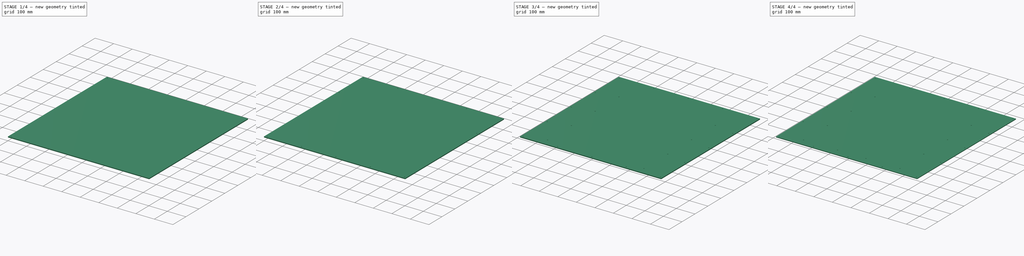
[diagram: build sequence overview — one tinted view per stage of 4, left to right]
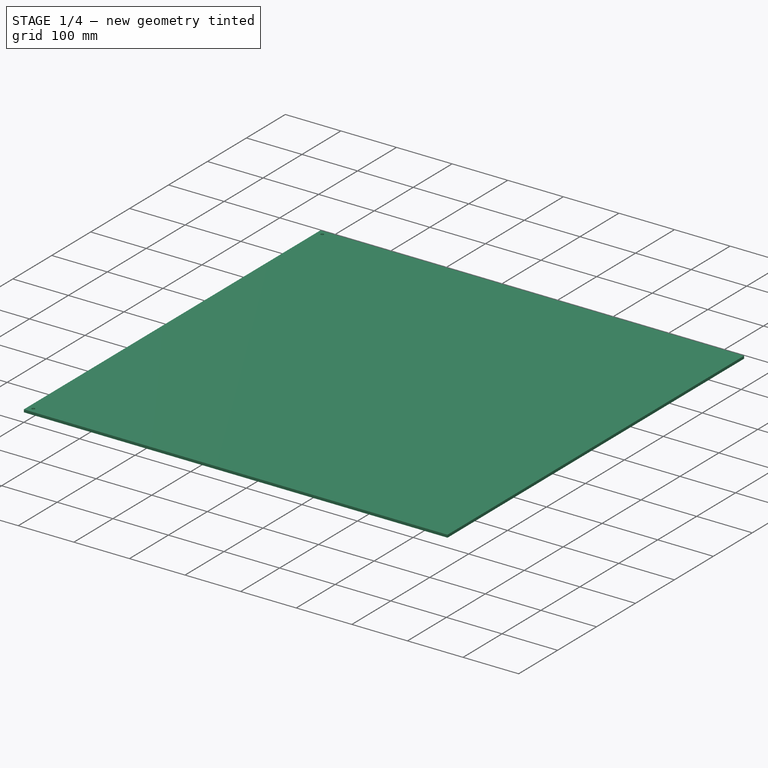
[diagram: stage 1 of 4 — iso view after this stage's code; geometry added in this stage tinted green]
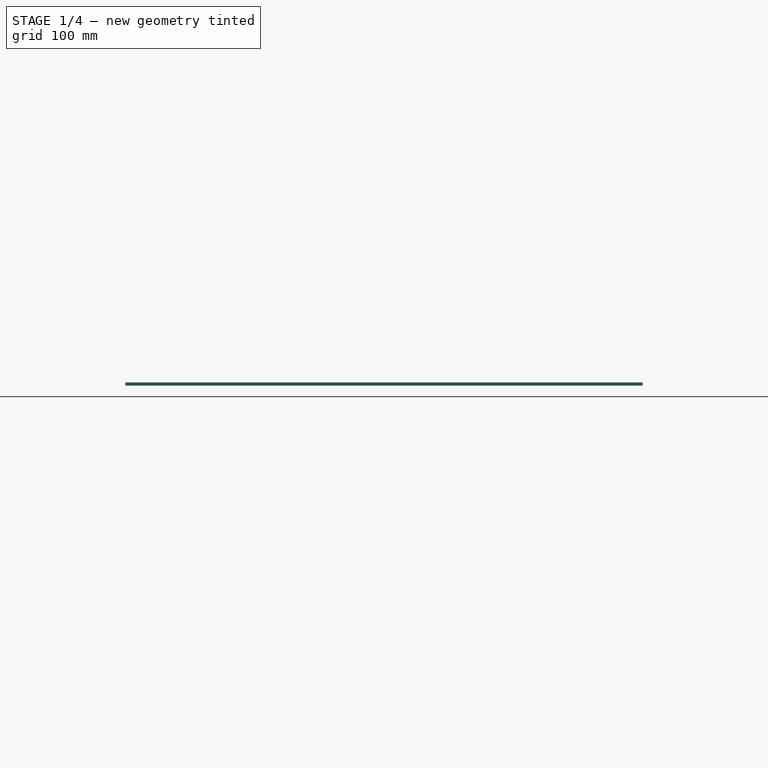
[diagram: stage 1 of 4 — front view after this stage's code; geometry added in this stage tinted green]
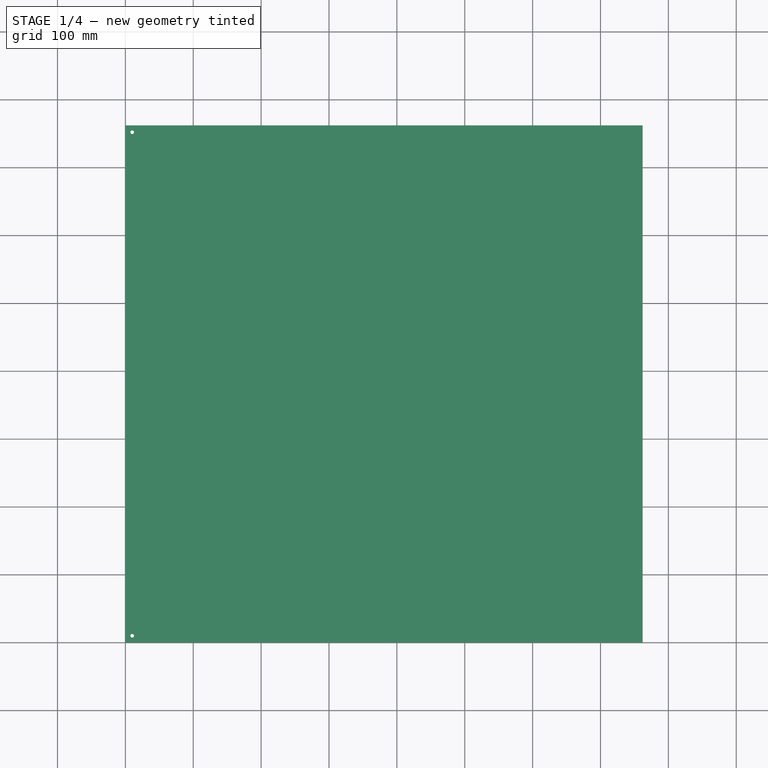
[diagram: stage 1 of 4 — top view after this stage's code; geometry added in this stage tinted green]
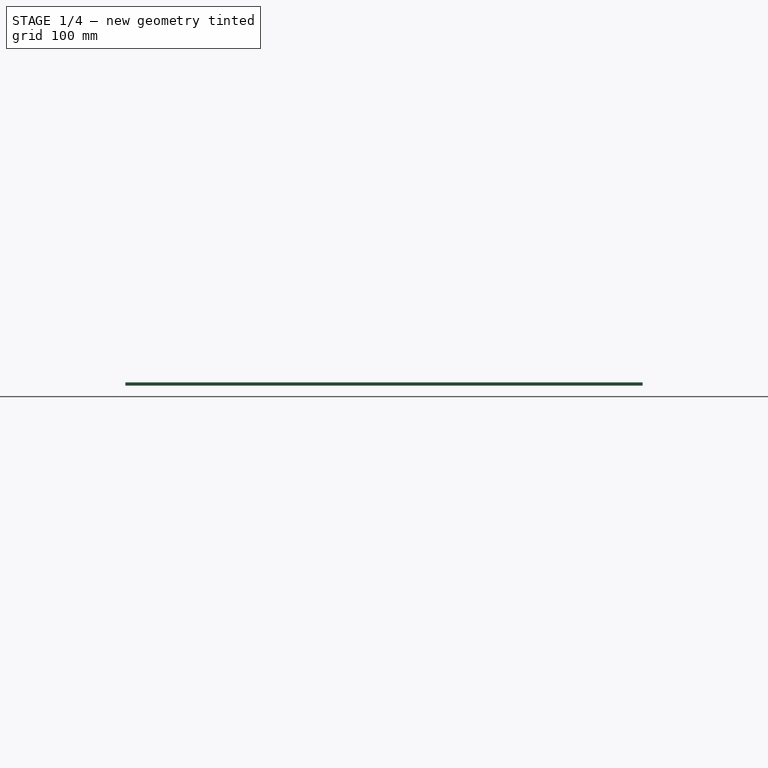
[diagram: stage 1 of 4 — right view after this stage's code; geometry added in this stage tinted green]
FCSTD DOCUMENT  (FreeCAD 0.17R7872 (Git))
Label: TAZ6_frame_assy_fixture_base_plate
License: CreativeCommons Attribution-ShareAlike
LicenseURL: http://creativecommons.org/licenses/by-sa/4.0/
objects: Sketcher::SketchObject×5, PartDesign::Pocket×4, PartDesign::LinearPattern×3, PartDesign::Pad×1, PartDesign::Fillet×1, PartDesign::Body×1, Part::Feature×1
note: 21 computed .brp shape members not serialized (recipe doc carries the construction recipe); baked Part::Feature solids carry a one-line shape summary decoded from their .brp

FEATURE [Sketcher::SketchObject] Sketch
  MapMode = 5
  Support = -> [XY_Plane]
  sketch-geometry (4):
    g0: LineSegment StartX=0 StartY=762 StartZ=0 EndX=762 EndY=762 EndZ=0
    g1: LineSegment StartX=762 StartY=762 StartZ=0 EndX=762 EndY=0 EndZ=0
    g2: LineSegment StartX=762 StartY=0 StartZ=0 EndX=0 EndY=0 EndZ=0
    g3: LineSegment StartX=0 StartY=0 StartZ=0 EndX=0 EndY=762 EndZ=0
  constraints (11):
    c: Coincident(g0,g1)
    c: Coincident(g1,g2)
    c: Coincident(g2,g3)
    c: Coincident(g3,g0)
    c: Horizontal(g0)
    c: Horizontal(g2)
    c: Vertical(g1)
    c: Vertical(g3)
    c: Coincident(g2,g-1)
    c: DistanceY(g3,g3) = 762
    c: DistanceX(g2,g2) = 762
FEATURE [PartDesign::Pad] Pad
  Length = 4.826
  Length2 = 100
  Placement = pos=(-272.447,383.343,-14.826) rot=(0,0,1;0rad)
  Profile = -> Sketch
  Type = 0
FEATURE [Sketcher::SketchObject] Sketch001
  ExternalGeometry = -> [Pad]
  MapMode = 5
  Placement = pos=(0,0,4.826) rot=(0,0,1;0rad)
  Support = -> [Pad]
  sketch-geometry (6):
    g0: LineSegment [constr] StartX=752 StartY=752 StartZ=0 EndX=10 EndY=752 EndZ=0
    g1: LineSegment [constr] StartX=10 StartY=752 StartZ=0 EndX=10 EndY=10 EndZ=0
    g2: LineSegment [constr] StartX=10 StartY=10 StartZ=0 EndX=752 EndY=10 EndZ=0
    g3: LineSegment [constr] StartX=752 StartY=10 StartZ=0 EndX=752 EndY=752 EndZ=0
    g4: Circle CenterX=10 CenterY=752 CenterZ=0 NormalX=0 NormalY=0 NormalZ=1 Radius=2.7
    g5: Circle CenterX=10 CenterY=10 CenterZ=0 NormalX=0 NormalY=0 NormalZ=1 Radius=2.7
  constraints (16):
    c: Coincident(g0,g1)
    c: Coincident(g1,g2)
    c: Coincident(g2,g3)
    c: Coincident(g3,g0)
    c: Horizontal(g0)
    c: Horizontal(g2)
    c: Vertical(g1)
    c: Vertical(g3)
    c: DistanceX(g0,g0) = 742
    c: DistanceY(g1,g1) = 742
    c: DistanceX(g0,g-4) = 10
    c: DistanceY(g0,g-4) = 10
    c: Coincident(g4,g0)
    c: Coincident(g5,g1)
    c: Radius(g5) = 2.7
    c: Equal(g5,g4)
FEATURE [PartDesign::Pocket] Pocket
  BaseFeature = -> Pad
  Length = 5
  Profile = -> Sketch001
  Type = 0
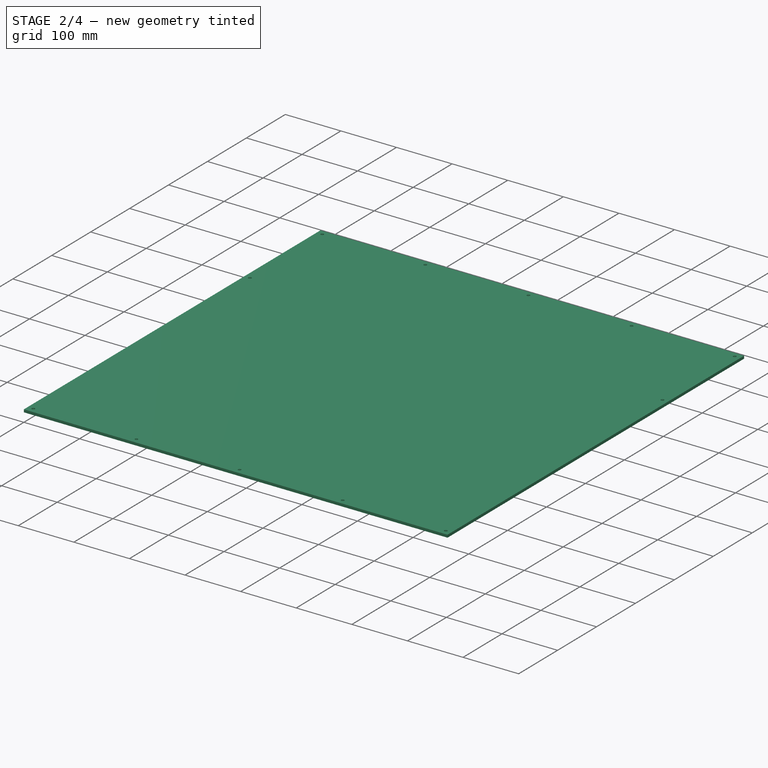
[diagram: stage 2 of 4 — iso view after this stage's code; geometry added in this stage tinted green]
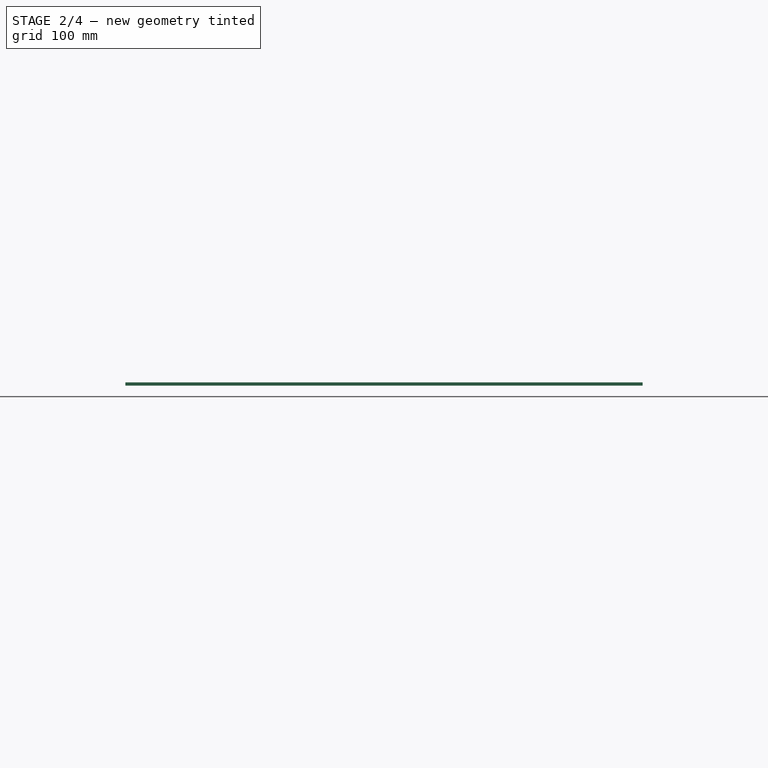
[diagram: stage 2 of 4 — front view after this stage's code; geometry added in this stage tinted green]
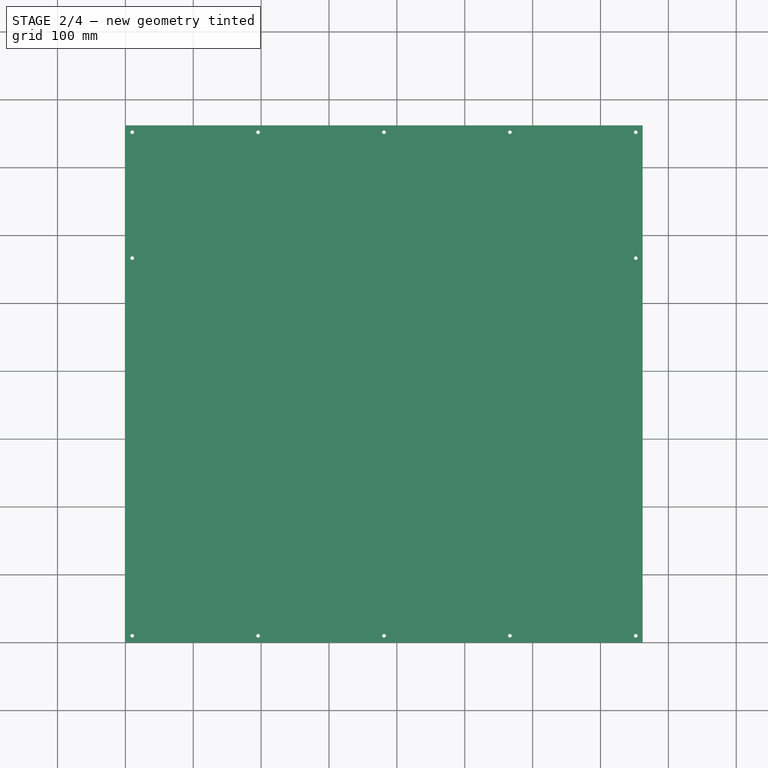
[diagram: stage 2 of 4 — top view after this stage's code; geometry added in this stage tinted green]
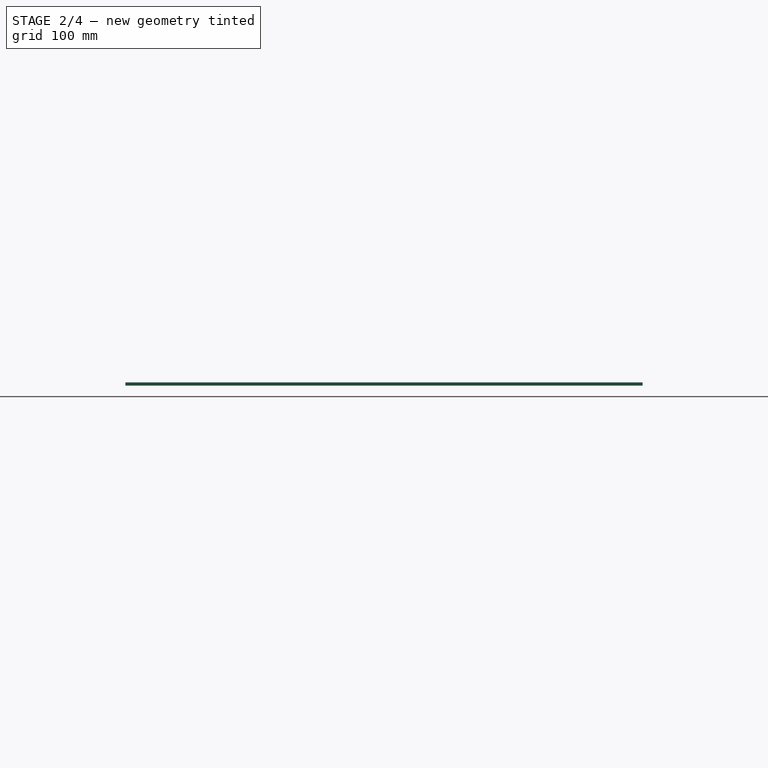
[diagram: stage 2 of 4 — right view after this stage's code; geometry added in this stage tinted green]
FEATURE [PartDesign::LinearPattern] LinearPattern
  BaseFeature = -> Pocket
  Direction = -> Sketch001 [H_Axis]
  Length = 742
  Occurrences = 5
  Originals = -> [Pocket]
FEATURE [Sketcher::SketchObject] Sketch002
  ExternalGeometry = -> [LinearPattern]
  MapMode = 5
  Placement = pos=(0,0,4.826) rot=(0,0,1;0rad)
  Support = -> [LinearPattern]
  sketch-geometry (10):
    g0: LineSegment [constr] StartX=10 StartY=752 StartZ=0 EndX=195.5 EndY=752 EndZ=0
    g1: LineSegment [constr] StartX=195.5 StartY=752 StartZ=0 EndX=195.5 EndY=566.5 EndZ=0
    g2: LineSegment [constr] StartX=195.5 StartY=566.5 StartZ=0 EndX=10 EndY=566.5 EndZ=0
    g3: LineSegment [constr] StartX=10 StartY=566.5 StartZ=0 EndX=10 EndY=752 EndZ=0
    g4: Circle CenterX=10 CenterY=566.5 CenterZ=0 NormalX=0 NormalY=0 NormalZ=1 Radius=2.7
    g5: LineSegment [constr] StartX=752 StartY=752 StartZ=0 EndX=566.5 EndY=752 EndZ=0
    g6: LineSegment [constr] StartX=566.5 StartY=752 StartZ=0 EndX=566.5 EndY=566.5 EndZ=0
    g7: LineSegment [constr] StartX=566.5 StartY=566.5 StartZ=0 EndX=752 EndY=566.5 EndZ=0
    g8: LineSegment [constr] StartX=752 StartY=566.5 StartZ=0 EndX=752 EndY=752 EndZ=0
    g9: Circle CenterX=752 CenterY=566.5 CenterZ=0 NormalX=0 NormalY=0 NormalZ=1 Radius=2.7
  constraints (26):
    c: Coincident(g0,g1)
    c: Coincident(g1,g2)
    c: Coincident(g2,g3)
    c: Coincident(g3,g0)
    c: Horizontal(g0)
    c: Horizontal(g2)
    c: Vertical(g1)
    c: Vertical(g3)
    c: Coincident(g0,g-3)
    c: Coincident(g0,g-4)
    c: Equal(g1,g0)
    c: Coincident(g4,g2)
    c: Coincident(g5,g6)
    c: Coincident(g6,g7)
    c: Coincident(g7,g8)
    c: Coincident(g8,g5)
    c: Horizontal(g5)
    c: Horizontal(g7)
    c: Vertical(g6)
    c: Vertical(g8)
    c: Coincident(g5,g-5)
    c: Coincident(g-6,g5)
    c: Equal(g5,g8)
    c: Coincident(g7,g9)
    c: Radius(g4) = 2.7
    c: Equal(g4,g9)
FEATURE [PartDesign::Pocket] Pocket001
  BaseFeature = -> LinearPattern
  Length = 5
  Profile = -> Sketch002
  Type = 0
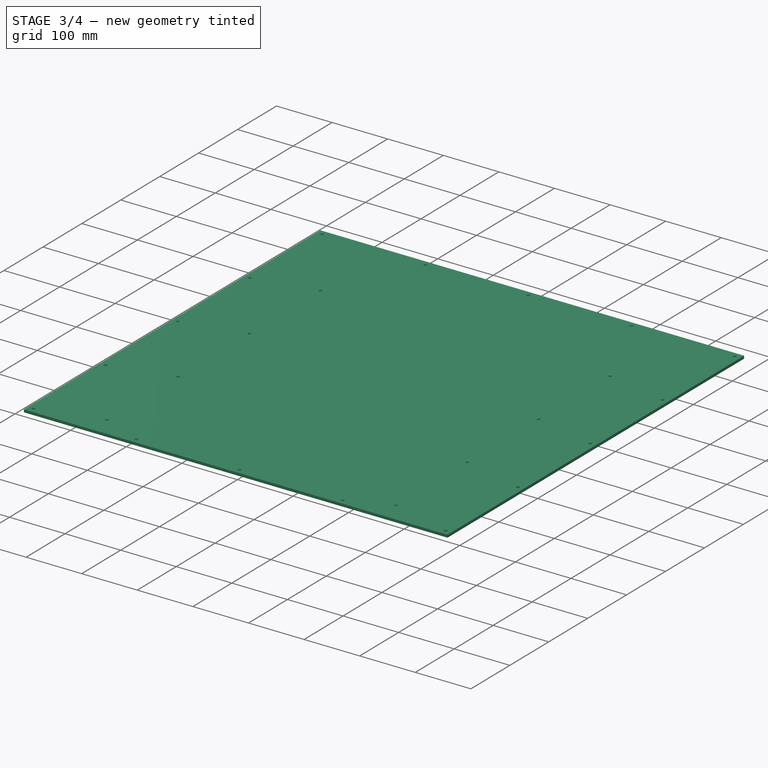
[diagram: stage 3 of 4 — iso view after this stage's code; geometry added in this stage tinted green]
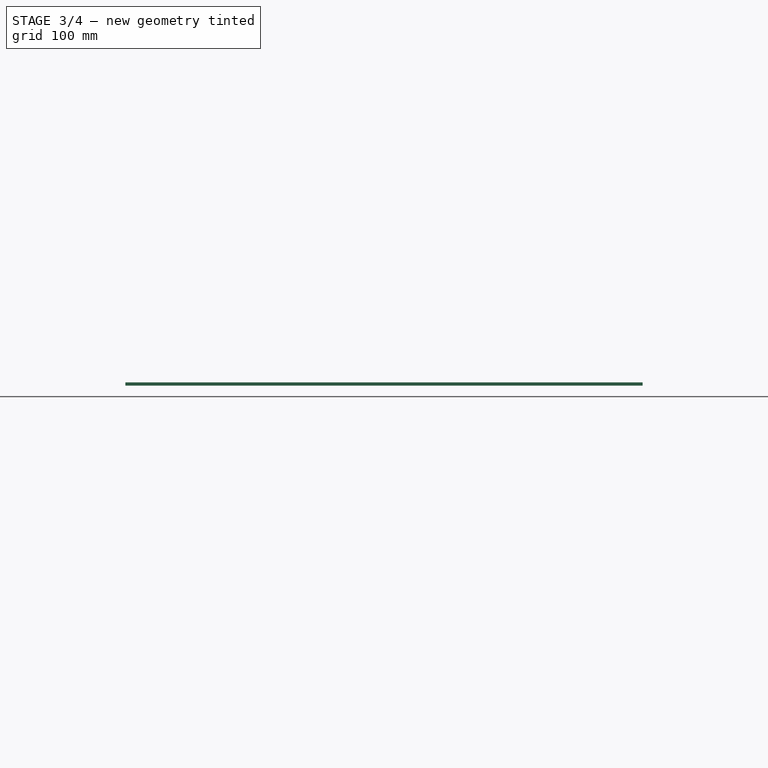
[diagram: stage 3 of 4 — front view after this stage's code; geometry added in this stage tinted green]
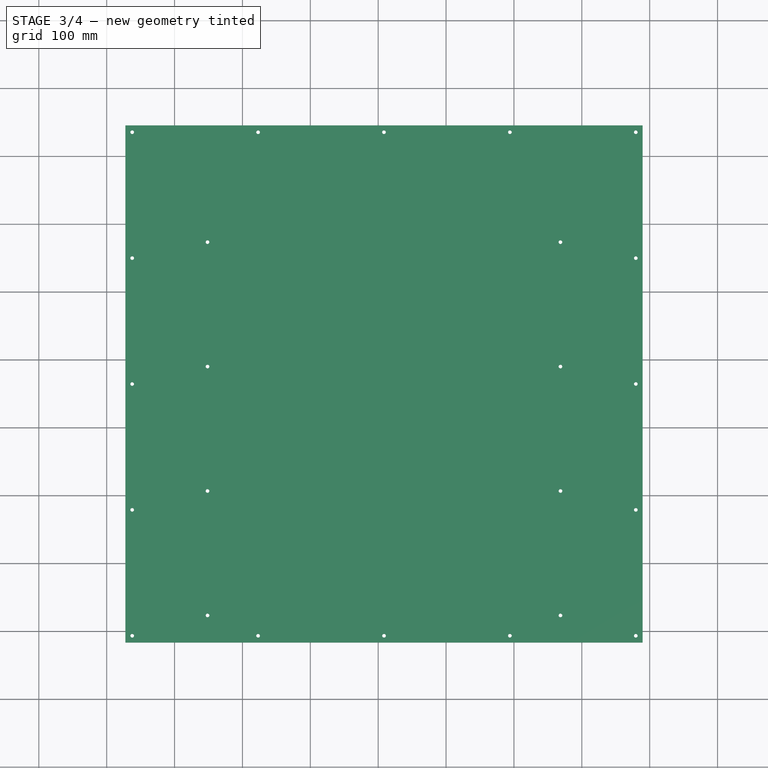
[diagram: stage 3 of 4 — top view after this stage's code; geometry added in this stage tinted green]
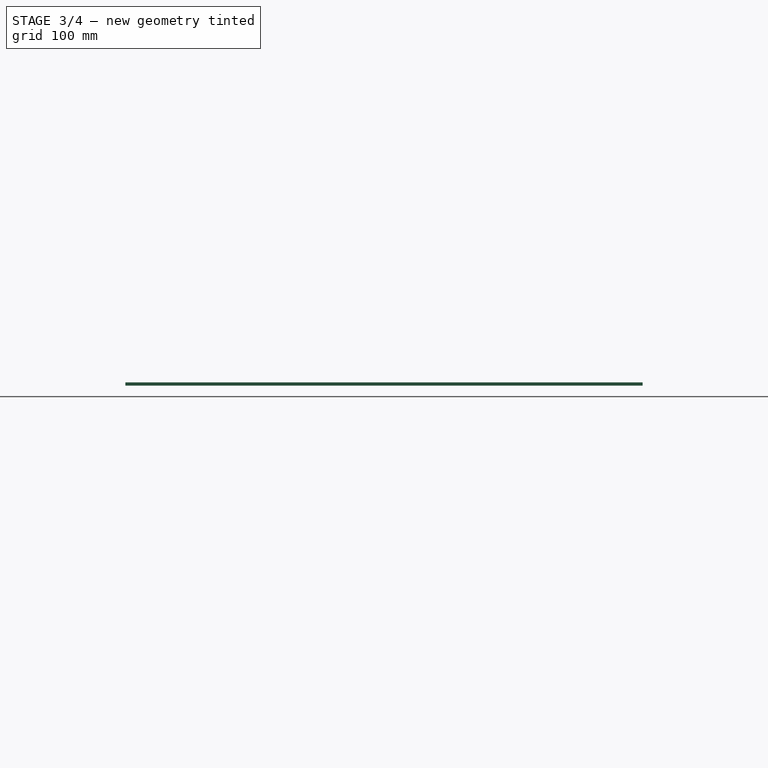
[diagram: stage 3 of 4 — right view after this stage's code; geometry added in this stage tinted green]
FEATURE [PartDesign::LinearPattern] LinearPattern001
  BaseFeature = -> Pocket001
  Direction = -> Sketch002 [V_Axis]
  Length = 371
  Occurrences = 3
  Originals = -> [Pocket001]
  Placement = pos=(-272.447,383.343,-14.826) rot=(0,0,1;0rad)
  Reversed = true
FEATURE [Sketcher::SketchObject] Sketch003
  MapMode = 5
  Placement = pos=(-272.447,383.343,-14.826) rot=(1,0,0;3.14159rad)
  Support = -> [LinearPattern001]
  sketch-geometry (3):
    g0: LineSegment [constr] StartX=121 StartY=-40 StartZ=0 EndX=641 EndY=-40 EndZ=0
    g1: Circle CenterX=121 CenterY=-40 CenterZ=0 NormalX=0 NormalY=0 NormalZ=1 Radius=2.7
    g2: Circle CenterX=641 CenterY=-40 CenterZ=0 NormalX=0 NormalY=0 NormalZ=1 Radius=2.7
  constraints (8):
    c: Horizontal(g0)
    c: DistanceX(g0,g0) = 520
    c: DistanceX(g-1,g0) = 121
    c: DistanceY(g0,g-1) = 40
    c: Coincident(g0,g2)
    c: Coincident(g0,g1)
    c: Radius(g1) = 2.7
    c: Equal(g1,g2)
FEATURE [PartDesign::Pocket] Pocket002
  BaseFeature = -> LinearPattern001
  Length = 5
  Placement = pos=(-272.447,383.343,-14.826) rot=(0,0,1;0rad)
  Profile = -> Sketch003
  Type = 0
FEATURE [PartDesign::LinearPattern] LinearPattern002
  BaseFeature = -> Pocket002
  Direction = -> Sketch003 [V_Axis]
  Length = 550
  Occurrences = 4
  Originals = -> [Pocket002]
  Placement = pos=(-272.447,383.343,-14.826) rot=(0,0,1;0rad)
  Reversed = true
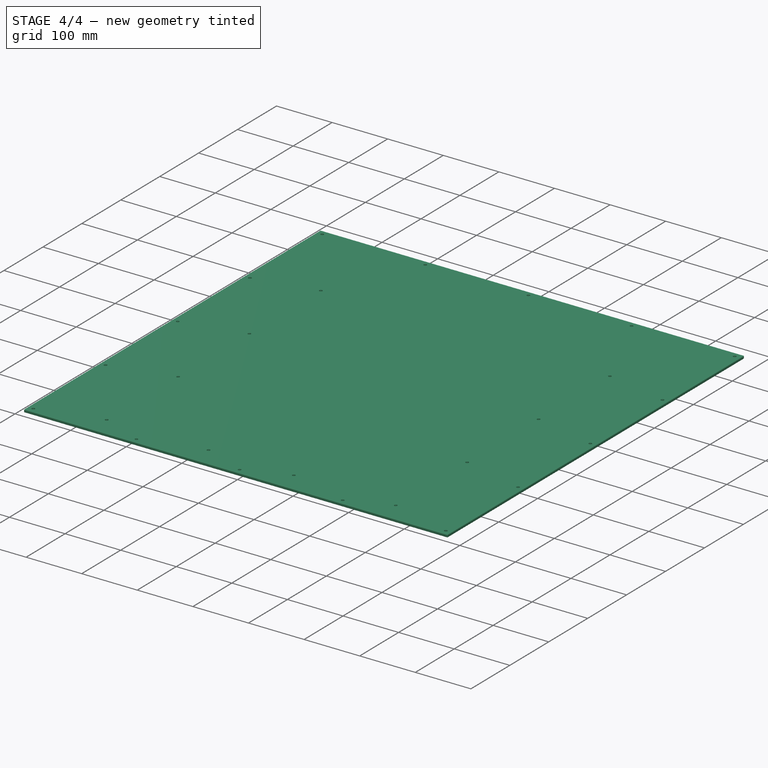
[diagram: stage 4 of 4 — iso view after this stage's code; geometry added in this stage tinted green]
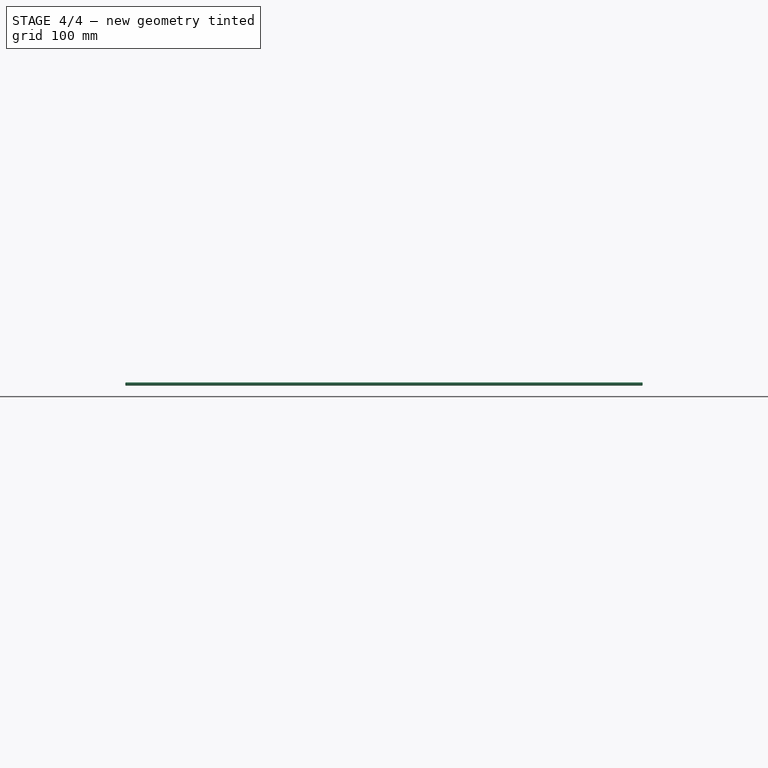
[diagram: stage 4 of 4 — front view after this stage's code; geometry added in this stage tinted green]
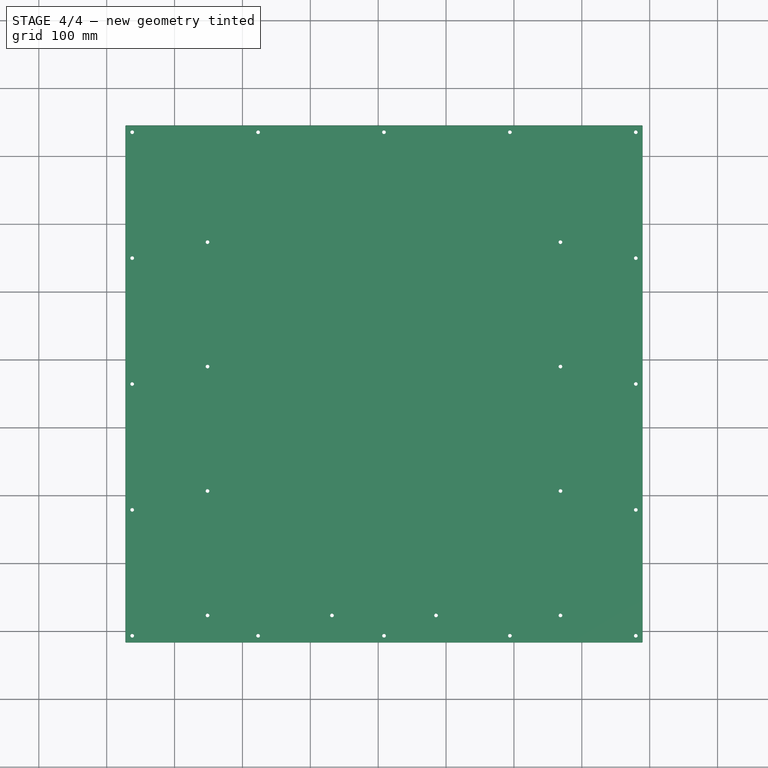
[diagram: stage 4 of 4 — top view after this stage's code; geometry added in this stage tinted green]
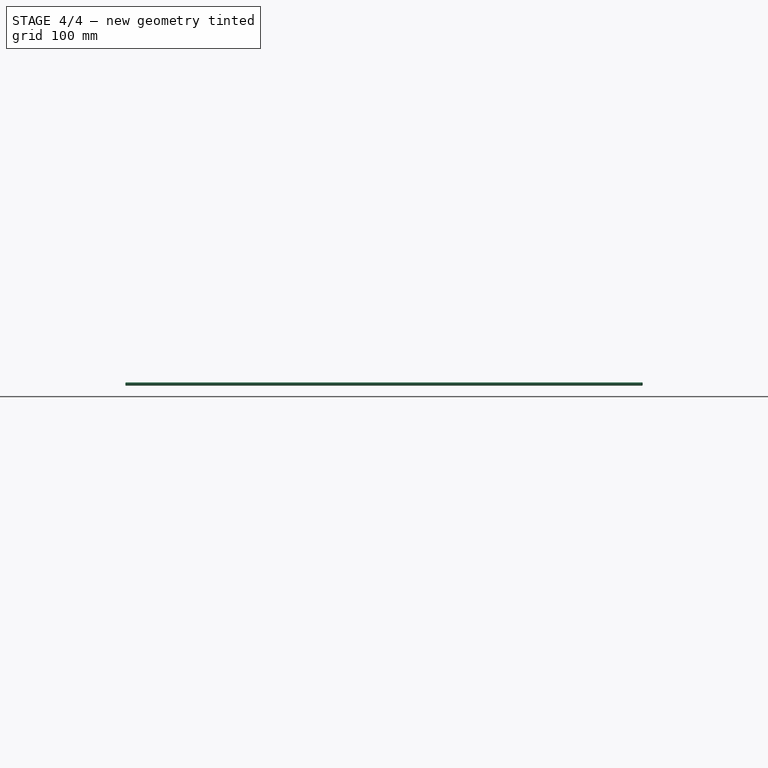
[diagram: stage 4 of 4 — right view after this stage's code; geometry added in this stage tinted green]
FEATURE [Sketcher::SketchObject] Sketch004
  ExternalGeometry = -> [LinearPattern002]
  MapMode = 5
  Placement = pos=(-272.447,383.343,-14.826) rot=(1,0,0;3.14159rad)
  Support = -> [LinearPattern002]
  sketch-geometry (10):
    g0: LineSegment [constr] StartX=121 StartY=-40 StartZ=0 EndX=304.333 EndY=-40 EndZ=0
    g1: LineSegment [constr] StartX=304.333 StartY=-40 StartZ=0 EndX=304.333 EndY=-223.333 EndZ=0
    g2: LineSegment [constr] StartX=304.333 StartY=-223.333 StartZ=0 EndX=121 EndY=-223.333 EndZ=0
    g3: LineSegment [constr] StartX=121 StartY=-223.333 StartZ=0 EndX=121 EndY=-40 EndZ=0
    g4: LineSegment [constr] StartX=641 StartY=-40 StartZ=0 EndX=457.667 EndY=-40 EndZ=0
    g5: LineSegment [constr] StartX=457.667 StartY=-40 StartZ=0 EndX=457.667 EndY=-223.333 EndZ=0
    g6: LineSegment [constr] StartX=457.667 StartY=-223.333 StartZ=0 EndX=641 EndY=-223.333 EndZ=0
    g7: LineSegment [constr] StartX=641 StartY=-223.333 StartZ=0 EndX=641 EndY=-40 EndZ=0
    g8: Circle CenterX=304.333 CenterY=-40 CenterZ=0 NormalX=0 NormalY=0 NormalZ=1 Radius=2.7
    g9: Circle CenterX=457.667 CenterY=-40 CenterZ=0 NormalX=0 NormalY=0 NormalZ=1 Radius=2.7
  constraints (24):
    c: Coincident(g-3,g0)
    c: Coincident(g3,g0)
    c: Coincident(g-4,g2)
    c: Coincident(g2,g3)
    c: Coincident(g1,g2)
    c: Coincident(g0,g1)
    c: Coincident(g0,g8)
    c: Coincident(g5,g6)
    c: Coincident(g4,g5)
    c: Coincident(g4,g9)
    c: Coincident(g4,g7)
    c: Coincident(g4,g-5)
    c: Coincident(g6,g7)
    c: Coincident(g6,g-6)
    c: Horizontal(g4)
    c: Horizontal(g6)
    c: Horizontal(g2)
    c: Horizontal(g0)
    c: Vertical(g1)
    c: Vertical(g5)
    c: Equal(g8,g9)
    c: Radius(g8) = 2.7
    c: Equal(g1,g0)
    c: Equal(g5,g4)
FEATURE [PartDesign::Pocket] Pocket003
  BaseFeature = -> LinearPattern002
  Length = 5
  Placement = pos=(-272.447,383.343,-14.826) rot=(0,0,1;0rad)
  Profile = -> Sketch004
  Type = 0
FEATURE [PartDesign::Fillet] Fillet
  Base = -> Pocket003 [Edge11,Edge38,Edge6,Edge7,Edge5,Edge9,Edge10,Edge8,Edge2,Edge3,Edge4,Edge1]
  BaseFeature = -> Pocket003
  Placement = pos=(-272.447,383.343,-14.826) rot=(0,0,1;0rad)
  Radius = 1
FEATURE [PartDesign::Body] Body
  Model = -> [Sketch,Pad,Sketch001,Pocket,LinearPattern,Sketch002,Pocket001,LinearPattern001,Sketch003,Pocket002,LinearPattern002,Sketch004,Pocket003,Fillet]
  Origin = -> BodyOrigin
  Tip = -> Fillet
FEATURE [Part::Feature] Fillet001
  shape: bbox 762 x 762 x 4.826 mm, 52 faces (baked)
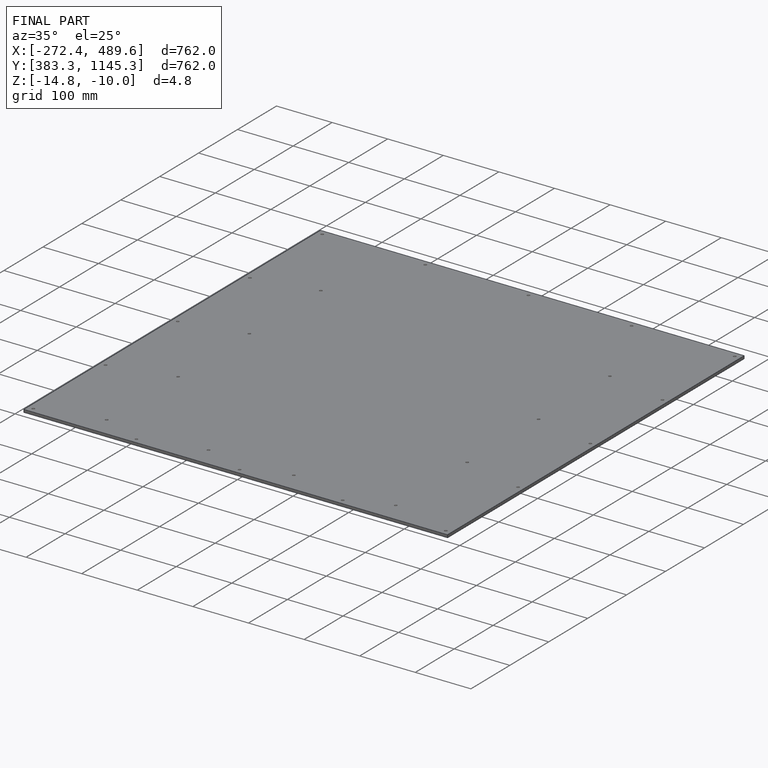
[diagram: finished part — iso view with bounding-box wireframe]
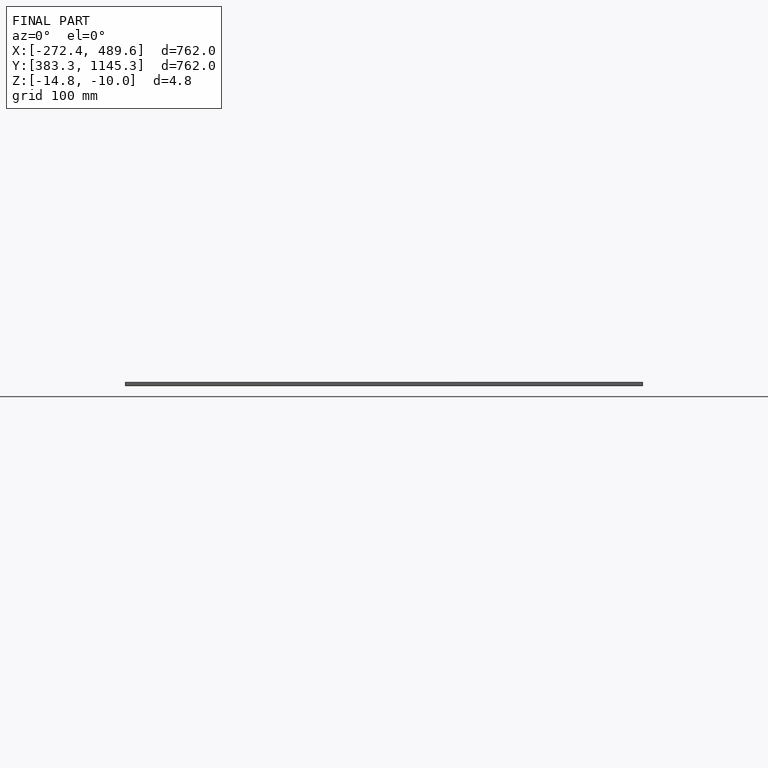
[diagram: finished part — front view with bounding-box wireframe]
